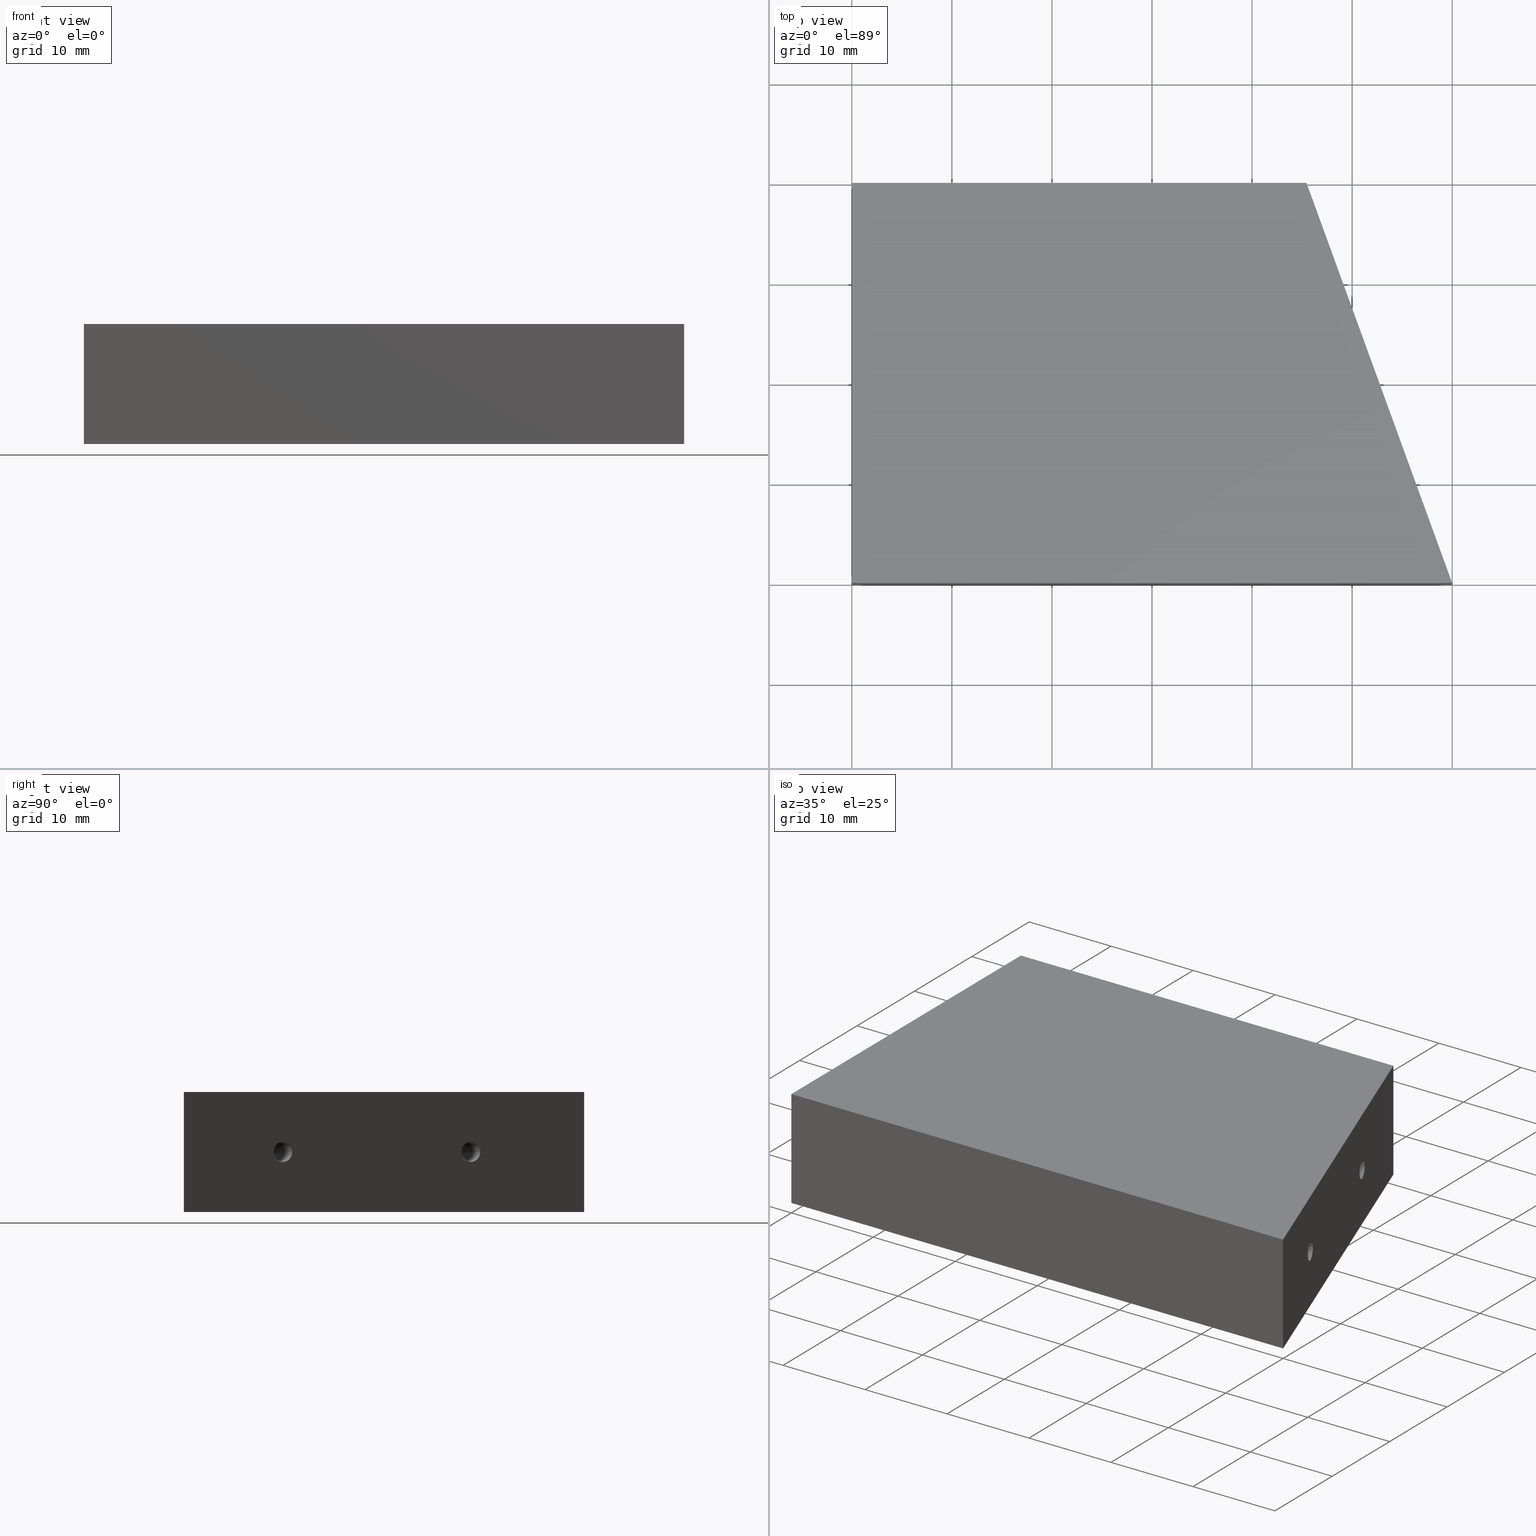
[diagram: canonical four-view strip — front | top / right | iso, engineering-drawing reading convention]
A machine part, canonical four-view strip (front | top / right | iso — engineering-drawing reading convention). The complete STEP part file that produces these views, byte-faithful:
ISO-10303-21;
HEADER;
FILE_DESCRIPTION (( 'STEP AP214' ),
    '1' );
FILE_NAME ('TripodSpreaderSupport.STEP',
    '2015-06-11T08:28:18',
    ( '' ),
    ( '' ),
    'SwSTEP 2.0',
    'SolidWorks 2014',
    '' );
FILE_SCHEMA (( 'AUTOMOTIVE_DESIGN' ));
ENDSEC;

DATA;
#1 = PLANE ( 'NONE',  #360 ) ;
#2 = EDGE_CURVE ( 'NONE', #415, #465, #288, .T. ) ;
#3 = EDGE_CURVE ( 'NONE', #415, #437, #416, .T. ) ;
#4 = EDGE_CURVE ( 'NONE', #325, #82, #382, .T. ) ;
#5 = EDGE_CURVE ( 'NONE', #325, #226, #285, .T. ) ;
#6 = DIRECTION ( 'NONE',  ( 0.9396926207859071000, 0.3420201433256727100, -0.0000000000000000000 ) ) ;
#7 = CARTESIAN_POINT ( 'NONE',  ( 49.56113186031245700, 28.68055449845544700, -2.357763936407512000E-015 ) ) ;
#8 = PRODUCT_RELATED_PRODUCT_CATEGORY ( 'part', '', ( #53 ) ) ;
#9 = EDGE_CURVE ( 'NONE', #82, #366, #278, .T. ) ;
#10 = DIRECTION ( 'NONE',  ( -0.0000000000000000000, -0.0000000000000000000, -1.000000000000000000 ) ) ;
#11 = FILL_AREA_STYLE_COLOUR ( '', #99 ) ;
#12 = EDGE_CURVE ( 'NONE', #82, #226, #276, .T. ) ;
#13 = EDGE_LOOP ( 'NONE', ( #87, #368, #475, #346 ) ) ;
#14 = DIRECTION ( 'NONE',  ( 1.049727191138618600E-016, 0.5150380749100542700, -0.8571673007021122200 ) ) ;
#15 = PRODUCT_DEFINITION_FORMATION_WITH_SPECIFIED_SOURCE ( 'ANY', '', #53, .NOT_KNOWN. ) ;
#16 = CARTESIAN_POINT ( 'NONE',  ( 0.0000000000000000000, 0.0000000000000000000, 0.0000000000000000000 ) ) ;
#17 = ADVANCED_FACE ( 'NONE', ( #273 ), #255, .F. ) ;
#18 = UNCERTAINTY_MEASURE_WITH_UNIT (LENGTH_MEASURE( 1.000000000000000100E-005 ), #378, 'distance_accuracy_value', 'NONE');
#19 = CARTESIAN_POINT ( 'NONE',  ( 45.46724342072068500, 4.842767742043329300, -2.235299256492776500E-015 ) ) ;
#20 = VERTEX_POINT ( 'NONE', #68 ) ;
#21 = CARTESIAN_POINT ( 'NONE',  ( 8.000000000000000000, 32.00000000000000000, -2.999999999999999100 ) ) ;
#22 = DIRECTION ( 'NONE',  ( 0.7771459614569755600, -0.6293203910498317300, 1.049727191138616600E-016 ) ) ;
#23 = EDGE_CURVE ( 'NONE', #366, #98, #265, .T. ) ;
#24 = DIRECTION ( 'NONE',  ( -0.0000000000000000000, 1.000000000000000000, -0.0000000000000000000 ) ) ;
#25 = DIRECTION ( 'NONE',  ( -0.3420201433256704900, 0.9396926207859077600, 0.0000000000000000000 ) ) ;
#26 = EDGE_CURVE ( 'NONE', #226, #98, #262, .T. ) ;
#27 = DIRECTION ( 'NONE',  ( 0.9396926207859071000, 0.3420201433256727100, -0.0000000000000000000 ) ) ;
#28 = PRODUCT_DEFINITION ( 'UNKNOWN', '', #15, #307 ) ;
#29 = AXIS2_PLACEMENT_3D ( 'NONE', #16, #320, #470 ) ;
#30 = ORIENTED_EDGE ( 'NONE', *, *, #12, .F. ) ;
#31 = PRESENTATION_STYLE_ASSIGNMENT (( #318 ) ) ;
#32 = EDGE_CURVE ( 'NONE', #434, #427, #259, .T. ) ;
#33 = SHAPE_DEFINITION_REPRESENTATION ( #362, #428 ) ;
#34 = CARTESIAN_POINT ( 'NONE',  ( 49.90315200363812700, 27.74086187766954800, -2.235299256492777300E-015 ) ) ;
#35 = CARTESIAN_POINT ( 'NONE',  ( 37.94280026755589600, 25.51600539933328100, -2.357763936407512000E-015 ) ) ;
#36 = DIRECTION ( 'NONE',  ( 0.0000000000000000000, 0.0000000000000000000, 1.000000000000000000 ) ) ;
#37 = DIRECTION ( 'NONE',  ( -0.0000000000000000000, 1.000000000000000000, -0.0000000000000000000 ) ) ;
#38 =( GEOMETRIC_REPRESENTATION_CONTEXT ( 3 ) GLOBAL_UNCERTAINTY_ASSIGNED_CONTEXT ( ( #18 ) ) GLOBAL_UNIT_ASSIGNED_CONTEXT ( ( #378, #89, #268 ) ) REPRESENTATION_CONTEXT ( 'NONE', 'WORKASPACE' ) );
#39 = EDGE_LOOP ( 'NONE', ( #355, #423, #478, #309 ) ) ;
#40 = CARTESIAN_POINT ( 'NONE',  ( 8.000000000000000000, 40.00000000000000000, 0.0000000000000000000 ) ) ;
#41 = DIRECTION ( 'NONE',  ( 0.9396926207859068700, 0.3420201433256726500, -0.0000000000000000000 ) ) ;
#42 = CARTESIAN_POINT ( 'NONE',  ( 37.94280026755589600, 25.51600539933327700, -2.357763936407512000E-015 ) ) ;
#43 = CARTESIAN_POINT ( 'NONE',  ( 0.0000000000000000000, 0.0000000000000000000, -6.000000000000000000 ) ) ;
#44 = DIRECTION ( 'NONE',  ( -0.0000000000000000000, 1.000000000000000000, -0.0000000000000000000 ) ) ;
#45 = EDGE_CURVE ( 'NONE', #482, #491, #261, .T. ) ;
#46 = ADVANCED_FACE ( 'NONE', ( #257 ), #1, .F. ) ;
#47 = ORIENTED_EDGE ( 'NONE', *, *, #45, .T. ) ;
#48 = DIRECTION ( 'NONE',  ( 0.0000000000000000000, 0.0000000000000000000, 1.000000000000000000 ) ) ;
#49 = MECHANICAL_DESIGN_GEOMETRIC_PRESENTATION_REPRESENTATION (  '', ( #60 ), #38 ) ;
#50 = EDGE_CURVE ( 'NONE', #434, #336, #245, .T. ) ;
#51 = DIRECTION ( 'NONE',  ( -1.000000000000000000, 0.0000000000000000000, -0.0000000000000000000 ) ) ;
#52 = DIRECTION ( 'NONE',  ( 1.000000000000000000, 0.0000000000000000000, 0.0000000000000000000 ) ) ;
#53 = PRODUCT ( 'TripodSpreaderSupport', 'TripodSpreaderSupport', '', ( #192 ) ) ;
#54 = CARTESIAN_POINT ( 'NONE',  ( 37.72019612106051800, 24.37080634350881800, -5.444084661126318100E-015 ) ) ;
#55 = DIRECTION ( 'NONE',  ( -0.0000000000000000000, -1.000000000000000000, -0.0000000000000000000 ) ) ;
#56 = CARTESIAN_POINT ( 'NONE',  ( 49.21911171698678800, 29.62024711924134800, -2.357763936407512000E-015 ) ) ;
#57 = CARTESIAN_POINT ( 'NONE',  ( 8.000000000000000000, 40.00000000000000000, 2.999999999999994700 ) ) ;
#58 = PRESENTATION_LAYER_ASSIGNMENT (  '', '', ( #60 ) ) ;
#59 = DIRECTION ( 'NONE',  ( -0.3420201433256716000, 0.9396926207859073200, 0.0000000000000000000 ) ) ;
#60 = STYLED_ITEM ( 'NONE', ( #31 ), #428 ) ;
#61 = DIRECTION ( 'NONE',  ( -0.3420201433256702100, 0.9396926207859078700, 0.0000000000000000000 ) ) ;
#62 = ORIENTED_EDGE ( 'NONE', *, *, #181, .F. ) ;
#63 = PLANE ( 'NONE',  #287 ) ;
#64 =( GEOMETRIC_REPRESENTATION_CONTEXT ( 3 ) GLOBAL_UNCERTAINTY_ASSIGNED_CONTEXT ( ( #356 ) ) GLOBAL_UNIT_ASSIGNED_CONTEXT ( ( #513, #497, #237 ) ) REPRESENTATION_CONTEXT ( 'NONE', 'WORKASPACE' ) );
#65 = EDGE_CURVE ( 'NONE', #427, #487, #252, .T. ) ;
#66 = ORIENTED_EDGE ( 'NONE', *, *, #439, .F. ) ;
#67 = FILL_AREA_STYLE_COLOUR ( '', #200 ) ;
#68 = CARTESIAN_POINT ( 'NONE',  ( 0.0000000000000000000, 40.00000000000000000, -6.000000000000000000 ) ) ;
#69 =( NAMED_UNIT ( * ) SI_UNIT ( $, .STERADIAN. ) SOLID_ANGLE_UNIT ( ) );
#70 = EDGE_CURVE ( 'NONE', #20, #241, #243, .T. ) ;
#71 = DIRECTION ( 'NONE',  ( 0.9396926207859068700, 0.3420201433256726500, -0.0000000000000000000 ) ) ;
#72 =( NAMED_UNIT ( * ) PLANE_ANGLE_UNIT ( ) SI_UNIT ( $, .RADIAN. ) );
#73 = EDGE_CURVE ( 'NONE', #336, #427, #240, .T. ) ;
#74 = ADVANCED_FACE ( 'NONE', ( #244 ), #230, .F. ) ;
#75 = DIRECTION ( 'NONE',  ( -0.3420201433256704900, 0.9396926207859077600, 0.0000000000000000000 ) ) ;
#76 = CARTESIAN_POINT ( 'NONE',  ( 45.12522327739501500, 5.782460362829233700, -2.357763936407511600E-015 ) ) ;
#77 = ORIENTED_EDGE ( 'NONE', *, *, #9, .T. ) ;
#78 = CARTESIAN_POINT ( 'NONE',  ( 0.0000000000000000000, 40.00000000000000000, 6.000000000000000000 ) ) ;
#79 = EDGE_CURVE ( 'NONE', #437, #415, #321, .T. ) ;
#80 = ADVANCED_FACE ( 'NONE', ( #222, #234, #223 ), #238, .F. ) ;
#81 = EDGE_CURVE ( 'NONE', #491, #466, #220, .T. ) ;
#82 = VERTEX_POINT ( 'NONE', #86 ) ;
#83 = DIRECTION ( 'NONE',  ( -0.0000000000000000000, -0.0000000000000000000, -1.000000000000000000 ) ) ;
#84 = AXIS2_PLACEMENT_3D ( 'NONE', #76, #27, #25 ) ;
#85 = EDGE_CURVE ( 'NONE', #226, #82, #216, .T. ) ;
#86 = CARTESIAN_POINT ( 'NONE',  ( 38.62684055420724100, 23.63662015776146700, -2.235299256492776500E-015 ) ) ;
#87 = ORIENTED_EDGE ( 'NONE', *, *, #3, .F. ) ;
#88 = DIRECTION ( 'NONE',  ( -0.3420201433256727700, 0.9396926207859069800, 0.0000000000000000000 ) ) ;
#89 =( NAMED_UNIT ( * ) PLANE_ANGLE_UNIT ( ) SI_UNIT ( $, .RADIAN. ) );
#90 = DIRECTION ( 'NONE',  ( 0.0000000000000000000, 0.5150380749100542700, 0.8571673007021122200 ) ) ;
#91 = DIRECTION ( 'NONE',  ( 0.9396926207859071000, 0.3420201433256727100, -0.0000000000000000000 ) ) ;
#92 = ORIENTED_EDGE ( 'NONE', *, *, #361, .F. ) ;
#93 = CARTESIAN_POINT ( 'NONE',  ( 45.44119062935171600, 40.00000000000000000, 6.000000000000000000 ) ) ;
#94 = DIRECTION ( 'NONE',  ( 0.9396926207859071000, 0.3420201433256727100, -0.0000000000000000000 ) ) ;
#95 = AXIS2_PLACEMENT_3D ( 'NONE', #185, #176, #208 ) ;
#96 = EDGE_LOOP ( 'NONE', ( #442, #483, #353 ) ) ;
#97 = AXIS2_PLACEMENT_3D ( 'NONE', #227, #212, #218 ) ;
#98 = VERTEX_POINT ( 'NONE', #384 ) ;
#99 = COLOUR_RGB ( '',1.000000000000000000, 1.000000000000000000, 1.000000000000000000 ) ;
#100 = AXIS2_PLACEMENT_3D ( 'NONE', #40, #37, #36 ) ;
#101 = ORIENTED_EDGE ( 'NONE', *, *, #70, .T. ) ;
#102 = CARTESIAN_POINT ( 'NONE',  ( 49.56113186031245700, 28.68055449845544700, -2.357763936407512000E-015 ) ) ;
#103 = CARTESIAN_POINT ( 'NONE',  ( 45.44119062935171600, 40.00000000000000000, 6.000000000000000000 ) ) ;
#104 = CONICAL_SURFACE ( 'NONE', #84, 0.9999999999999962300, 1.029744258676651200 ) ;
#105 = AXIS2_PLACEMENT_3D ( 'NONE', #102, #91, #88 ) ;
#106 = LINE ( 'NONE', #19, #108 ) ;
#107 = CARTESIAN_POINT ( 'NONE',  ( 45.44119062935171600, 40.00000000000000000, 6.000000000000000000 ) ) ;
#108 = VECTOR ( 'NONE', #22, 1000.000000000000000 ) ;
#109 = CARTESIAN_POINT ( 'NONE',  ( 8.000000000000000000, 32.00000000000000000, 0.0000000000000000000 ) ) ;
#110 = FACE_OUTER_BOUND ( 'NONE', #96, .T. ) ;
#111 = VECTOR ( 'NONE', #44, 1000.000000000000000 ) ;
#112 = ORIENTED_EDGE ( 'NONE', *, *, #334, .T. ) ;
#113 = EDGE_CURVE ( 'NONE', #436, #482, #228, .T. ) ;
#114 = ADVANCED_FACE ( 'NONE', ( #210 ), #207, .F. ) ;
#115 = AXIS2_PLACEMENT_3D ( 'NONE', #458, #305, #51 ) ;
#116 = CIRCLE ( 'NONE', #100, 2.999999999999990700 ) ;
#117 = DIRECTION ( 'NONE',  ( 0.9396926207859071000, 0.3420201433256727100, -0.0000000000000000000 ) ) ;
#118 = CARTESIAN_POINT ( 'NONE',  ( 45.44119062935171600, 40.00000000000000000, -6.000000000000000000 ) ) ;
#119 = VECTOR ( 'NONE', #83, 1000.000000000000000 ) ;
#120 = CARTESIAN_POINT ( 'NONE',  ( 56.74355487015157700, 8.947009461951406500, -2.235299256492776900E-015 ) ) ;
#121 = CARTESIAN_POINT ( 'NONE',  ( 45.44119062935171600, 40.00000000000000000, 6.000000000000000000 ) ) ;
#122 = ORIENTED_EDGE ( 'NONE', *, *, #23, .F. ) ;
#123 = CARTESIAN_POINT ( 'NONE',  ( 0.0000000000000000000, 0.0000000000000000000, 6.000000000000000000 ) ) ;
#124 = CIRCLE ( 'NONE', #105, 0.9999999999999896700 ) ;
#125 = CARTESIAN_POINT ( 'NONE',  ( 0.0000000000000000000, 0.0000000000000000000, -6.000000000000000000 ) ) ;
#126 = CARTESIAN_POINT ( 'NONE',  ( 44.56059898757397500, 5.576953927790676800, -5.444084661126318100E-015 ) ) ;
#127 = AXIS2_PLACEMENT_3D ( 'NONE', #109, #441, #410 ) ;
#128 = CARTESIAN_POINT ( 'NONE',  ( 38.28482041088156500, 24.57631277854737600, -2.357763936407512000E-015 ) ) ;
#129 = DIRECTION ( 'NONE',  ( -0.3420201433256704900, 0.9396926207859077600, 0.0000000000000000000 ) ) ;
#130 = AXIS2_PLACEMENT_3D ( 'NONE', #312, #308, #342 ) ;
#131 = ORIENTED_EDGE ( 'NONE', *, *, #26, .T. ) ;
#132 = LINE ( 'NONE', #57, #111 ) ;
#133 = CARTESIAN_POINT ( 'NONE',  ( 45.12522327739501500, 5.782460362829233700, -2.357763936407511600E-015 ) ) ;
#134 = CYLINDRICAL_SURFACE ( 'NONE', #95, 2.999999999999994700 ) ;
#135 = LINE ( 'NONE', #103, #119 ) ;
#136 = AXIS2_PLACEMENT_3D ( 'NONE', #373, #372, #496 ) ;
#137 = CYLINDRICAL_SURFACE ( 'NONE', #97, 0.9999999999999930100 ) ;
#138 = VECTOR ( 'NONE', #214, 1000.000000000000000 ) ;
#139 = LINE ( 'NONE', #224, #138 ) ;
#140 = FACE_OUTER_BOUND ( 'NONE', #495, .T. ) ;
#141 = EDGE_CURVE ( 'NONE', #453, #487, #394, .T. ) ;
#142 = VECTOR ( 'NONE', #229, 999.9999999999998900 ) ;
#143 = FACE_OUTER_BOUND ( 'NONE', #371, .T. ) ;
#144 = VERTEX_POINT ( 'NONE', #499 ) ;
#145 = CARTESIAN_POINT ( 'NONE',  ( 38.28482041088156500, 24.57631277854737600, -2.357763936407512000E-015 ) ) ;
#146 = VECTOR ( 'NONE', #165, 1000.000000000000000 ) ;
#147 = AXIS2_PLACEMENT_3D ( 'NONE', #351, #339, #233 ) ;
#148 = CONICAL_SURFACE ( 'NONE', #130, 0.9999999999999962300, 1.029744258676651200 ) ;
#149 = UNCERTAINTY_MEASURE_WITH_UNIT (LENGTH_MEASURE( 1.000000000000000100E-005 ), #506, 'distance_accuracy_value', 'NONE');
#150 = LINE ( 'NONE', #161, #146 ) ;
#151 = CIRCLE ( 'NONE', #127, 2.999999999999999100 ) ;
#152 = CARTESIAN_POINT ( 'NONE',  ( 56.74355487015157700, 8.947009461951406500, -2.235299256492776900E-015 ) ) ;
#153 = ORIENTED_EDGE ( 'NONE', *, *, #12, .T. ) ;
#154 = LINE ( 'NONE', #281, #156 ) ;
#155 = CARTESIAN_POINT ( 'NONE',  ( 8.000000000000000000, 40.00000000000000000, 0.0000000000000000000 ) ) ;
#156 = VECTOR ( 'NONE', #296, 1000.000000000000000 ) ;
#157 = CONICAL_SURFACE ( 'NONE', #147, 0.9999999999999962300, 1.029744258676650100 ) ;
#158 = DIRECTION ( 'NONE',  ( -0.0000000000000000000, 1.000000000000000000, -0.0000000000000000000 ) ) ;
#159 = CARTESIAN_POINT ( 'NONE',  ( 8.000000000000000000, 40.00000000000000000, -2.999999999999990700 ) ) ;
#160 = AXIS2_PLACEMENT_3D ( 'NONE', #404, #484, #462 ) ;
#161 = CARTESIAN_POINT ( 'NONE',  ( 0.0000000000000000000, 0.0000000000000000000, 6.000000000000000000 ) ) ;
#162 = CIRCLE ( 'NONE', #136, 0.9999999999999896700 ) ;
#163 = AXIS2_PLACEMENT_3D ( 'NONE', #380, #267, #409 ) ;
#164 = LINE ( 'NONE', #445, #167 ) ;
#165 = DIRECTION ( 'NONE',  ( -0.0000000000000000000, -0.0000000000000000000, -1.000000000000000000 ) ) ;
#166 = FACE_OUTER_BOUND ( 'NONE', #485, .T. ) ;
#167 = VECTOR ( 'NONE', #324, 1000.000000000000000 ) ;
#168 = ADVANCED_FACE ( 'NONE', ( #219 ), #63, .T. ) ;
#169 = FACE_OUTER_BOUND ( 'NONE', #225, .T. ) ;
#170 = CARTESIAN_POINT ( 'NONE',  ( 8.000000000000000000, 40.00000000000000000, 2.999999999999990700 ) ) ;
#171 = APPLICATION_PROTOCOL_DEFINITION ( 'draft international standard', 'automotive_design', 1998, #350 ) ;
#172 = LINE ( 'NONE', #367, #142 ) ;
#173 = CIRCLE ( 'NONE', #196, 0.9999999999999896700 ) ;
#174 = FACE_OUTER_BOUND ( 'NONE', #426, .T. ) ;
#175 = FACE_BOUND ( 'NONE', #417, .T. ) ;
#176 = DIRECTION ( 'NONE',  ( -0.0000000000000000000, 1.000000000000000000, -0.0000000000000000000 ) ) ;
#177 = FACE_OUTER_BOUND ( 'NONE', #507, .T. ) ;
#178 = CYLINDRICAL_SURFACE ( 'NONE', #163, 2.999999999999994700 ) ;
#179 = LINE ( 'NONE', #260, #183 ) ;
#180 = CYLINDRICAL_SURFACE ( 'NONE', #184, 0.9999999999999930100 ) ;
#181 = EDGE_CURVE ( 'NONE', #491, #20, #205, .T. ) ;
#182 = CARTESIAN_POINT ( 'NONE',  ( 8.000000000000000000, 32.00000000000000000, 0.0000000000000000000 ) ) ;
#183 = VECTOR ( 'NONE', #264, 1000.000000000000200 ) ;
#184 = AXIS2_PLACEMENT_3D ( 'NONE', #202, #489, #493 ) ;
#185 = CARTESIAN_POINT ( 'NONE',  ( 8.000000000000000000, 40.00000000000000000, 0.0000000000000000000 ) ) ;
#186 = ORIENTED_EDGE ( 'NONE', *, *, #504, .F. ) ;
#187 = VERTEX_POINT ( 'NONE', #398 ) ;
#188 = LINE ( 'NONE', #369, #189 ) ;
#189 = VECTOR ( 'NONE', #370, 1000.000000000000000 ) ;
#190 = CYLINDRICAL_SURFACE ( 'NONE', #193, 0.9999999999999930100 ) ;
#191 = CARTESIAN_POINT ( 'NONE',  ( 8.000000000000000000, 32.00000000000000000, 0.0000000000000000000 ) ) ;
#192 = PRODUCT_CONTEXT ( 'NONE', #381, 'mechanical' ) ;
#193 = AXIS2_PLACEMENT_3D ( 'NONE', #393, #412, #438 ) ;
#194 = PRESENTATION_STYLE_ASSIGNMENT (( #510 ) ) ;
#195 = SURFACE_STYLE_FILL_AREA ( #433 ) ;
#196 = AXIS2_PLACEMENT_3D ( 'NONE', #333, #331, #251 ) ;
#197 = CONICAL_SURFACE ( 'NONE', #282, 2.999999999999999100, 1.029744258676654300 ) ;
#198 = VECTOR ( 'NONE', #386, 1000.000000000000200 ) ;
#199 = LINE ( 'NONE', #429, #198 ) ;
#200 = COLOUR_RGB ( '',1.000000000000000000, 1.000000000000000000, 1.000000000000000000 ) ;
#201 = FACE_OUTER_BOUND ( 'NONE', #39, .T. ) ;
#202 = CARTESIAN_POINT ( 'NONE',  ( 49.56113186031245700, 28.68055449845544700, -2.357763936407512000E-015 ) ) ;
#203 = FACE_OUTER_BOUND ( 'NONE', #347, .T. ) ;
#204 = FACE_OUTER_BOUND ( 'NONE', #474, .T. ) ;
#205 = LINE ( 'NONE', #397, #213 ) ;
#206 = FACE_OUTER_BOUND ( 'NONE', #354, .T. ) ;
#207 = CYLINDRICAL_SURFACE ( 'NONE', #315, 0.9999999999999930100 ) ;
#208 = DIRECTION ( 'NONE',  ( 0.0000000000000000000, 0.0000000000000000000, 1.000000000000000000 ) ) ;
#209 = FACE_OUTER_BOUND ( 'NONE', #406, .T. ) ;
#210 = FACE_OUTER_BOUND ( 'NONE', #13, .T. ) ;
#211 = CARTESIAN_POINT ( 'NONE',  ( 38.28482041088156500, 24.57631277854737600, -2.357763936407512000E-015 ) ) ;
#212 = DIRECTION ( 'NONE',  ( 0.9396926207859071000, 0.3420201433256727100, -0.0000000000000000000 ) ) ;
#213 = VECTOR ( 'NONE', #10, 1000.000000000000000 ) ;
#214 = DIRECTION ( 'NONE',  ( 1.000000000000000000, -1.161219106975661900E-017, -0.0000000000000000000 ) ) ;
#215 = VECTOR ( 'NONE', #344, 1000.000000000000200 ) ;
#216 = CIRCLE ( 'NONE', #322, 0.9999999999999962300 ) ;
#217 = ADVANCED_FACE ( 'NONE', ( #203 ), #300, .F. ) ;
#218 = DIRECTION ( 'NONE',  ( -0.3420201433256716000, 0.9396926207859073200, 0.0000000000000000000 ) ) ;
#219 = FACE_OUTER_BOUND ( 'NONE', #314, .T. ) ;
#220 = LINE ( 'NONE', #388, #236 ) ;
#221 = CARTESIAN_POINT ( 'NONE',  ( 44.78320313406934600, 6.722152983615133700, -2.357763936407511600E-015 ) ) ;
#222 = FACE_BOUND ( 'NONE', #293, .T. ) ;
#223 = FACE_OUTER_BOUND ( 'NONE', #279, .T. ) ;
#224 = CARTESIAN_POINT ( 'NONE',  ( 60.00000000000000000, -6.967314641853971000E-016, 6.000000000000000000 ) ) ;
#225 = EDGE_LOOP ( 'NONE', ( #451, #476, #153 ) ) ;
#226 = VERTEX_POINT ( 'NONE', #42 ) ;
#227 = CARTESIAN_POINT ( 'NONE',  ( 49.56113186031245700, 28.68055449845544700, -2.357763936407512000E-015 ) ) ;
#228 = LINE ( 'NONE', #121, #215 ) ;
#229 = DIRECTION ( 'NONE',  ( 0.1908089953765439700, 0.9816271834476642000, 0.0000000000000000000 ) ) ;
#230 = CONICAL_SURFACE ( 'NONE', #359, 2.999999999999999100, 1.029744258676654300 ) ;
#231 = ORIENTED_EDGE ( 'NONE', *, *, #361, .T. ) ;
#232 =( GEOMETRIC_REPRESENTATION_CONTEXT ( 3 ) GLOBAL_UNCERTAINTY_ASSIGNED_CONTEXT ( ( #149 ) ) GLOBAL_UNIT_ASSIGNED_CONTEXT ( ( #506, #72, #69 ) ) REPRESENTATION_CONTEXT ( 'NONE', 'WORKASPACE' ) );
#233 = DIRECTION ( 'NONE',  ( -0.3420201433256704900, 0.9396926207859077600, 0.0000000000000000000 ) ) ;
#234 = FACE_BOUND ( 'NONE', #395, .T. ) ;
#235 = DIRECTION ( 'NONE',  ( -0.9396926207859069800, -0.3420201433256727100, 0.0000000000000000000 ) ) ;
#236 = VECTOR ( 'NONE', #511, 1000.000000000000000 ) ;
#237 =( NAMED_UNIT ( * ) SI_UNIT ( $, .STERADIAN. ) SOLID_ANGLE_UNIT ( ) );
#238 = PLANE ( 'NONE',  #319 ) ;
#239 = VECTOR ( 'NONE', #55, 1000.000000000000000 ) ;
#240 = CIRCLE ( 'NONE', #365, 2.999999999999999100 ) ;
#241 = VERTEX_POINT ( 'NONE', #43 ) ;
#242 = VECTOR ( 'NONE', #24, 1000.000000000000000 ) ;
#243 = LINE ( 'NONE', #125, #239 ) ;
#244 = FACE_OUTER_BOUND ( 'NONE', #419, .T. ) ;
#245 = LINE ( 'NONE', #310, #249 ) ;
#246 = MECHANICAL_DESIGN_GEOMETRIC_PRESENTATION_REPRESENTATION (  '', ( #263 ), #232 ) ;
#247 = PRESENTATION_LAYER_ASSIGNMENT (  '', '', ( #263 ) ) ;
#248 = VERTEX_POINT ( 'NONE', #126 ) ;
#249 = VECTOR ( 'NONE', #90, 1000.000000000000000 ) ;
#250 = VECTOR ( 'NONE', #306, 1000.000000000000000 ) ;
#251 = DIRECTION ( 'NONE',  ( -0.3420201433256727700, 0.9396926207859069800, 0.0000000000000000000 ) ) ;
#252 = LINE ( 'NONE', #313, #242 ) ;
#253 = PLANE ( 'NONE',  #160 ) ;
#254 = VECTOR ( 'NONE', #14, 1000.000000000000000 ) ;
#255 = CONICAL_SURFACE ( 'NONE', #390, 0.9999999999999962300, 1.029744258676650100 ) ;
#256 = CARTESIAN_POINT ( 'NONE',  ( 8.000000000000000000, 32.00000000000000000, 2.999999999999999100 ) ) ;
#257 = FACE_OUTER_BOUND ( 'NONE', #514, .T. ) ;
#258 = VECTOR ( 'NONE', #71, 1000.000000000000200 ) ;
#259 = LINE ( 'NONE', #21, #254 ) ;
#260 = CARTESIAN_POINT ( 'NONE',  ( 45.44119062935171600, 40.00000000000000000, -6.000000000000000000 ) ) ;
#261 = LINE ( 'NONE', #411, #250 ) ;
#262 = LINE ( 'NONE', #56, #258 ) ;
#263 = STYLED_ITEM ( 'NONE', ( #194 ), #271 ) ;
#264 = DIRECTION ( 'NONE',  ( -0.3420201433256726000, 0.9396926207859068700, -0.0000000000000000000 ) ) ;
#265 = CIRCLE ( 'NONE', #387, 0.9999999999999896700 ) ;
#266 = VECTOR ( 'NONE', #302, 1000.000000000000200 ) ;
#267 = DIRECTION ( 'NONE',  ( -0.0000000000000000000, 1.000000000000000000, -0.0000000000000000000 ) ) ;
#268 =( NAMED_UNIT ( * ) SI_UNIT ( $, .STERADIAN. ) SOLID_ANGLE_UNIT ( ) );
#269 = ADVANCED_FACE ( 'NONE', ( #206 ), #197, .F. ) ;
#270 = DIRECTION ( 'NONE',  ( -1.000000000000000000, 1.161219106975661700E-017, 0.0000000000000000000 ) ) ;
#271 = MANIFOLD_SOLID_BREP ( '�2.0 (2) Diameter Hole1', #374 ) ;
#272 = ADVANCED_FACE ( 'NONE', ( #201 ), #190, .F. ) ;
#273 = FACE_OUTER_BOUND ( 'NONE', #376, .T. ) ;
#274 = AXIS2_PLACEMENT_3D ( 'NONE', #512, #298, #270 ) ;
#275 = VECTOR ( 'NONE', #311, 1000.000000000000100 ) ;
#276 = CIRCLE ( 'NONE', #392, 0.9999999999999962300 ) ;
#277 = VECTOR ( 'NONE', #341, 1000.000000000000100 ) ;
#278 = LINE ( 'NONE', #34, #266 ) ;
#279 = EDGE_LOOP ( 'NONE', ( #112, #391, #290, #459 ) ) ;
#280 = DIRECTION ( 'NONE',  ( -1.000000000000000000, 0.0000000000000000000, -0.0000000000000000000 ) ) ;
#281 = CARTESIAN_POINT ( 'NONE',  ( 60.00000000000000000, -6.967314641853971000E-016, 6.000000000000000000 ) ) ;
#282 = AXIS2_PLACEMENT_3D ( 'NONE', #481, #449, #447 ) ;
#283 = DIRECTION ( 'NONE',  ( 0.9396926207859071000, 0.3420201433256727100, -0.0000000000000000000 ) ) ;
#284 = ORIENTED_EDGE ( 'NONE', *, *, #181, .T. ) ;
#285 = LINE ( 'NONE', #35, #275 ) ;
#286 = VECTOR ( 'NONE', #41, 1000.000000000000200 ) ;
#287 = AXIS2_PLACEMENT_3D ( 'NONE', #454, #295, #280 ) ;
#288 = LINE ( 'NONE', #120, #286 ) ;
#289 = DIRECTION ( 'NONE',  ( 0.9396926207859071000, 0.3420201433256727100, -0.0000000000000000000 ) ) ;
#290 = ORIENTED_EDGE ( 'NONE', *, *, #113, .F. ) ;
#291 = DIRECTION ( 'NONE',  ( 0.9396926207859071000, 0.3420201433256727100, -0.0000000000000000000 ) ) ;
#292 = DIRECTION ( 'NONE',  ( -0.3420201433256704900, 0.9396926207859077600, 0.0000000000000000000 ) ) ;
#293 = EDGE_LOOP ( 'NONE', ( #480, #122 ) ) ;
#294 = ORIENTED_EDGE ( 'NONE', *, *, #4, .F. ) ;
#295 = DIRECTION ( 'NONE',  ( 0.0000000000000000000, 0.0000000000000000000, -1.000000000000000000 ) ) ;
#296 = DIRECTION ( 'NONE',  ( -0.0000000000000000000, -0.0000000000000000000, -1.000000000000000000 ) ) ;
#297 = EDGE_CURVE ( 'NONE', #437, #144, #199, .T. ) ;
#298 = DIRECTION ( 'NONE',  ( 1.161219106975661700E-017, 1.000000000000000000, -0.0000000000000000000 ) ) ;
#299 = ORIENTED_EDGE ( 'NONE', *, *, #50, .F. ) ;
#300 = PLANE ( 'NONE',  #274 ) ;
#301 = ADVANCED_FACE ( 'NONE', ( #209 ), #180, .F. ) ;
#302 = DIRECTION ( 'NONE',  ( 0.9396926207859068700, 0.3420201433256726500, -0.0000000000000000000 ) ) ;
#303 = PLANE ( 'NONE',  #115 ) ;
#304 = ADVANCED_FACE ( 'NONE', ( #204 ), #178, .F. ) ;
#305 = DIRECTION ( 'NONE',  ( 0.0000000000000000000, 0.0000000000000000000, -1.000000000000000000 ) ) ;
#306 = DIRECTION ( 'NONE',  ( -1.000000000000000000, -0.0000000000000000000, -0.0000000000000000000 ) ) ;
#307 = PRODUCT_DEFINITION_CONTEXT ( 'detailed design', #350, 'design' ) ;
#308 = DIRECTION ( 'NONE',  ( 0.9396926207859071000, 0.3420201433256727100, -0.0000000000000000000 ) ) ;
#309 = ORIENTED_EDGE ( 'NONE', *, *, #363, .T. ) ;
#310 = CARTESIAN_POINT ( 'NONE',  ( 8.000000000000000000, 32.00000000000000000, 2.999999999999999100 ) ) ;
#311 = DIRECTION ( 'NONE',  ( 0.1908089953765450300, 0.9816271834476638600, 0.0000000000000000000 ) ) ;
#312 = CARTESIAN_POINT ( 'NONE',  ( 45.12522327739501500, 5.782460362829233700, -2.357763936407511600E-015 ) ) ;
#313 = CARTESIAN_POINT ( 'NONE',  ( 8.000000000000000000, 40.00000000000000000, -2.999999999999994700 ) ) ;
#314 = EDGE_LOOP ( 'NONE', ( #494, #332, #92, #509 ) ) ;
#315 = AXIS2_PLACEMENT_3D ( 'NONE', #464, #94, #59 ) ;
#316 = AXIS2_PLACEMENT_3D ( 'NONE', #155, #158, #48 ) ;
#317 = DIRECTION ( 'NONE',  ( 0.3420201433256726500, -0.9396926207859068700, 0.0000000000000000000 ) ) ;
#318 = SURFACE_STYLE_USAGE ( .BOTH. , #343 ) ;
#319 = AXIS2_PLACEMENT_3D ( 'NONE', #93, #235, #317 ) ;
#320 = DIRECTION ( 'NONE',  ( 0.0000000000000000000, 0.0000000000000000000, 1.000000000000000000 ) ) ;
#321 = CIRCLE ( 'NONE', #340, 0.9999999999999970000 ) ;
#322 = AXIS2_PLACEMENT_3D ( 'NONE', #128, #289, #129 ) ;
#323 = ORIENTED_EDGE ( 'NONE', *, *, #23, .T. ) ;
#324 = DIRECTION ( 'NONE',  ( 1.000000000000000000, -1.161219106975661900E-017, -0.0000000000000000000 ) ) ;
#325 = VERTEX_POINT ( 'NONE', #54 ) ;
#326 = DIRECTION ( 'NONE',  ( -0.3420201433256702100, 0.9396926207859078700, 0.0000000000000000000 ) ) ;
#327 = ORIENTED_EDGE ( 'NONE', *, *, #492, .T. ) ;
#328 = DIRECTION ( 'NONE',  ( 0.9396926207859071000, 0.3420201433256727100, -0.0000000000000000000 ) ) ;
#329 = ORIENTED_EDGE ( 'NONE', *, *, #408, .T. ) ;
#330 = ORIENTED_EDGE ( 'NONE', *, *, #141, .F. ) ;
#331 = DIRECTION ( 'NONE',  ( 0.9396926207859071000, 0.3420201433256727100, -0.0000000000000000000 ) ) ;
#332 = ORIENTED_EDGE ( 'NONE', *, *, #70, .F. ) ;
#333 = CARTESIAN_POINT ( 'NONE',  ( 56.40153472682590800, 9.886702082737306400, -2.357763936407511600E-015 ) ) ;
#334 = EDGE_CURVE ( 'NONE', #187, #467, #179, .T. ) ;
#335 = CARTESIAN_POINT ( 'NONE',  ( 45.12522327739501500, 5.782460362829233700, -2.357763936407511600E-015 ) ) ;
#336 = VERTEX_POINT ( 'NONE', #256 ) ;
#337 = ADVANCED_FACE ( 'NONE', ( #175, #177 ), #253, .F. ) ;
#338 = CARTESIAN_POINT ( 'NONE',  ( 38.62684055420723400, 23.63662015776147000, -2.235299256492776900E-015 ) ) ;
#339 = DIRECTION ( 'NONE',  ( 0.9396926207859071000, 0.3420201433256727100, -0.0000000000000000000 ) ) ;
#340 = AXIS2_PLACEMENT_3D ( 'NONE', #133, #283, #61 ) ;
#341 = DIRECTION ( 'NONE',  ( 0.7771459614569762300, -0.6293203910498307300, 1.049727191138615900E-016 ) ) ;
#342 = DIRECTION ( 'NONE',  ( -0.3420201433256704900, 0.9396926207859077600, 0.0000000000000000000 ) ) ;
#343 = SURFACE_SIDE_STYLE ('',( #420 ) ) ;
#344 = DIRECTION ( 'NONE',  ( -0.3420201433256726000, 0.9396926207859068700, -0.0000000000000000000 ) ) ;
#345 = ORIENTED_EDGE ( 'NONE', *, *, #73, .F. ) ;
#346 = ORIENTED_EDGE ( 'NONE', *, *, #297, .F. ) ;
#347 = EDGE_LOOP ( 'NONE', ( #452, #473, #66, #422 ) ) ;
#348 = ORIENTED_EDGE ( 'NONE', *, *, #73, .T. ) ;
#349 = CARTESIAN_POINT ( 'NONE',  ( 0.0000000000000000000, 0.0000000000000000000, 6.000000000000000000 ) ) ;
#350 = APPLICATION_CONTEXT ( 'automotive_design' ) ;
#351 = CARTESIAN_POINT ( 'NONE',  ( 38.28482041088156500, 24.57631277854737600, -2.357763936407512000E-015 ) ) ;
#352 = ORIENTED_EDGE ( 'NONE', *, *, #500, .T. ) ;
#353 = ORIENTED_EDGE ( 'NONE', *, *, #3, .T. ) ;
#354 = EDGE_LOOP ( 'NONE', ( #299, #461, #329 ) ) ;
#355 = ORIENTED_EDGE ( 'NONE', *, *, #2, .F. ) ;
#356 = UNCERTAINTY_MEASURE_WITH_UNIT (LENGTH_MEASURE( 1.000000000000000100E-005 ), #513, 'distance_accuracy_value', 'NONE');
#357 = FILL_AREA_STYLE ('',( #11 ) ) ;
#358 = ORIENTED_EDGE ( 'NONE', *, *, #45, .F. ) ;
#359 = AXIS2_PLACEMENT_3D ( 'NONE', #191, #508, #460 ) ;
#360 = AXIS2_PLACEMENT_3D ( 'NONE', #349, #52, #450 ) ;
#361 = EDGE_CURVE ( 'NONE', #467, #20, #188, .T. ) ;
#362 = PRODUCT_DEFINITION_SHAPE ( 'NONE', 'NONE',  #28 ) ;
#363 = EDGE_CURVE ( 'NONE', #144, #465, #173, .T. ) ;
#364 = ORIENTED_EDGE ( 'NONE', *, *, #432, .T. ) ;
#365 = AXIS2_PLACEMENT_3D ( 'NONE', #182, #456, #505 ) ;
#366 = VERTEX_POINT ( 'NONE', #401 ) ;
#367 = CARTESIAN_POINT ( 'NONE',  ( 44.78320313406934600, 6.722152983615137200, -2.357763936407511600E-015 ) ) ;
#368 = ORIENTED_EDGE ( 'NONE', *, *, #2, .T. ) ;
#369 = CARTESIAN_POINT ( 'NONE',  ( 0.0000000000000000000, 40.00000000000000000, -6.000000000000000000 ) ) ;
#370 = DIRECTION ( 'NONE',  ( -1.000000000000000000, -0.0000000000000000000, -0.0000000000000000000 ) ) ;
#371 = EDGE_LOOP ( 'NONE', ( #440, #472, #131, #402 ) ) ;
#372 = DIRECTION ( 'NONE',  ( 0.9396926207859071000, 0.3420201433256727100, -0.0000000000000000000 ) ) ;
#373 = CARTESIAN_POINT ( 'NONE',  ( 56.40153472682590800, 9.886702082737306400, -2.357763936407511600E-015 ) ) ;
#374 = CLOSED_SHELL ( 'NONE', ( #301, #379, #114, #501, #446, #269, #217, #80, #337, #46, #407, #168, #74, #304, #403, #272, #17, #444 ) ) ;
#375 = ORIENTED_EDGE ( 'NONE', *, *, #463, .F. ) ;
#376 = EDGE_LOOP ( 'NONE', ( #294, #490, #498 ) ) ;
#377 = CARTESIAN_POINT ( 'NONE',  ( 7.999999999999998200, 30.19741814291732100, 0.0000000000000000000 ) ) ;
#378 =( LENGTH_UNIT ( ) NAMED_UNIT ( * ) SI_UNIT ( .MILLI., .METRE. ) );
#379 = ADVANCED_FACE ( 'NONE', ( #169 ), #157, .F. ) ;
#380 = CARTESIAN_POINT ( 'NONE',  ( 8.000000000000000000, 40.00000000000000000, 0.0000000000000000000 ) ) ;
#381 = APPLICATION_CONTEXT ( 'automotive_design' ) ;
#382 = LINE ( 'NONE', #338, #277 ) ;
#383 = CARTESIAN_POINT ( 'NONE',  ( 60.00000000000000000, -6.967314641853971000E-016, 6.000000000000000000 ) ) ;
#384 = CARTESIAN_POINT ( 'NONE',  ( 49.21911171698678800, 29.62024711924134800, -2.357763936407512000E-015 ) ) ;
#385 = ORIENTED_EDGE ( 'NONE', *, *, #500, .F. ) ;
#386 = DIRECTION ( 'NONE',  ( 0.9396926207859068700, 0.3420201433256726500, -0.0000000000000000000 ) ) ;
#387 = AXIS2_PLACEMENT_3D ( 'NONE', #7, #6, #414 ) ;
#388 = CARTESIAN_POINT ( 'NONE',  ( 0.0000000000000000000, 0.0000000000000000000, 6.000000000000000000 ) ) ;
#389 = EDGE_CURVE ( 'NONE', #465, #144, #162, .T. ) ;
#390 = AXIS2_PLACEMENT_3D ( 'NONE', #211, #291, #292 ) ;
#391 = ORIENTED_EDGE ( 'NONE', *, *, #486, .F. ) ;
#392 = AXIS2_PLACEMENT_3D ( 'NONE', #145, #117, #75 ) ;
#393 = CARTESIAN_POINT ( 'NONE',  ( 56.40153472682590800, 9.886702082737306400, -2.357763936407511600E-015 ) ) ;
#394 = CIRCLE ( 'NONE', #316, 2.999999999999990700 ) ;
#395 = EDGE_LOOP ( 'NONE', ( #418, #502 ) ) ;
#396 = CARTESIAN_POINT ( 'NONE',  ( 8.000000000000000000, 32.00000000000000000, -2.999999999999999100 ) ) ;
#397 = CARTESIAN_POINT ( 'NONE',  ( 0.0000000000000000000, 40.00000000000000000, 6.000000000000000000 ) ) ;
#398 = CARTESIAN_POINT ( 'NONE',  ( 60.00000000000000000, -6.967314641853971000E-016, -6.000000000000000000 ) ) ;
#399 = AXIS2_PLACEMENT_3D ( 'NONE', #335, #328, #326 ) ;
#400 = EDGE_CURVE ( 'NONE', #241, #187, #164, .T. ) ;
#401 = CARTESIAN_POINT ( 'NONE',  ( 49.90315200363812700, 27.74086187766954800, -2.235299256492777300E-015 ) ) ;
#402 = ORIENTED_EDGE ( 'NONE', *, *, #468, .T. ) ;
#403 = ADVANCED_FACE ( 'NONE', ( #166 ), #148, .F. ) ;
#404 = CARTESIAN_POINT ( 'NONE',  ( 0.0000000000000000000, 40.00000000000000000, 6.000000000000000000 ) ) ;
#405 = APPLICATION_PROTOCOL_DEFINITION ( 'draft international standard', 'automotive_design', 1998, #381 ) ;
#406 = EDGE_LOOP ( 'NONE', ( #30, #77, #323, #425 ) ) ;
#407 = ADVANCED_FACE ( 'NONE', ( #174 ), #303, .F. ) ;
#408 = EDGE_CURVE ( 'NONE', #427, #336, #151, .T. ) ;
#409 = DIRECTION ( 'NONE',  ( 0.0000000000000000000, 0.0000000000000000000, 1.000000000000000000 ) ) ;
#410 = DIRECTION ( 'NONE',  ( 0.0000000000000000000, 0.0000000000000000000, 1.000000000000000000 ) ) ;
#411 = CARTESIAN_POINT ( 'NONE',  ( 0.0000000000000000000, 40.00000000000000000, 6.000000000000000000 ) ) ;
#412 = DIRECTION ( 'NONE',  ( 0.9396926207859071000, 0.3420201433256727100, -0.0000000000000000000 ) ) ;
#413 = EDGE_CURVE ( 'NONE', #436, #187, #154, .T. ) ;
#414 = DIRECTION ( 'NONE',  ( -0.3420201433256727700, 0.9396926207859069800, 0.0000000000000000000 ) ) ;
#415 = VERTEX_POINT ( 'NONE', #443 ) ;
#416 = CIRCLE ( 'NONE', #399, 0.9999999999999970000 ) ;
#417 = EDGE_LOOP ( 'NONE', ( #330, #448 ) ) ;
#418 = ORIENTED_EDGE ( 'NONE', *, *, #363, .F. ) ;
#419 = EDGE_LOOP ( 'NONE', ( #455, #435, #348 ) ) ;
#420 = SURFACE_STYLE_FILL_AREA ( #357 ) ;
#421 = ORIENTED_EDGE ( 'NONE', *, *, #408, .F. ) ;
#422 = ORIENTED_EDGE ( 'NONE', *, *, #463, .T. ) ;
#423 = ORIENTED_EDGE ( 'NONE', *, *, #79, .F. ) ;
#424 = ORIENTED_EDGE ( 'NONE', *, *, #439, .T. ) ;
#425 = ORIENTED_EDGE ( 'NONE', *, *, #26, .F. ) ;
#426 = EDGE_LOOP ( 'NONE', ( #424, #479, #47, #431 ) ) ;
#427 = VERTEX_POINT ( 'NONE', #396 ) ;
#428 = ADVANCED_BREP_SHAPE_REPRESENTATION ( 'TripodSpreaderSupport', ( #271, #29 ), #64 ) ;
#429 = CARTESIAN_POINT ( 'NONE',  ( 56.05951458350023800, 10.82639470352320800, -2.357763936407511600E-015 ) ) ;
#430 = SURFACE_SIDE_STYLE ('',( #195 ) ) ;
#431 = ORIENTED_EDGE ( 'NONE', *, *, #81, .T. ) ;
#432 = EDGE_CURVE ( 'NONE', #248, #437, #172, .T. ) ;
#433 = FILL_AREA_STYLE ('',( #67 ) ) ;
#434 = VERTEX_POINT ( 'NONE', #377 ) ;
#435 = ORIENTED_EDGE ( 'NONE', *, *, #50, .T. ) ;
#436 = VERTEX_POINT ( 'NONE', #383 ) ;
#437 = VERTEX_POINT ( 'NONE', #221 ) ;
#438 = DIRECTION ( 'NONE',  ( -0.3420201433256716000, 0.9396926207859073200, 0.0000000000000000000 ) ) ;
#439 = EDGE_CURVE ( 'NONE', #466, #436, #139, .T. ) ;
#440 = ORIENTED_EDGE ( 'NONE', *, *, #9, .F. ) ;
#441 = DIRECTION ( 'NONE',  ( -0.0000000000000000000, 1.000000000000000000, -0.0000000000000000000 ) ) ;
#442 = ORIENTED_EDGE ( 'NONE', *, *, #432, .F. ) ;
#443 = CARTESIAN_POINT ( 'NONE',  ( 45.46724342072069200, 4.842767742043326600, -2.235299256492776100E-015 ) ) ;
#444 = ADVANCED_FACE ( 'NONE', ( #143 ), #137, .F. ) ;
#445 = CARTESIAN_POINT ( 'NONE',  ( 60.00000000000000000, -6.967314641853971000E-016, -6.000000000000000000 ) ) ;
#446 = ADVANCED_FACE ( 'NONE', ( #140 ), #134, .F. ) ;
#447 = DIRECTION ( 'NONE',  ( 0.0000000000000000000, 0.0000000000000000000, 1.000000000000000000 ) ) ;
#448 = ORIENTED_EDGE ( 'NONE', *, *, #492, .F. ) ;
#449 = DIRECTION ( 'NONE',  ( -0.0000000000000000000, 1.000000000000000000, -0.0000000000000000000 ) ) ;
#450 = DIRECTION ( 'NONE',  ( 0.0000000000000000000, 0.0000000000000000000, -1.000000000000000000 ) ) ;
#451 = ORIENTED_EDGE ( 'NONE', *, *, #5, .F. ) ;
#452 = ORIENTED_EDGE ( 'NONE', *, *, #400, .T. ) ;
#453 = VERTEX_POINT ( 'NONE', #170 ) ;
#454 = CARTESIAN_POINT ( 'NONE',  ( 0.0000000000000000000, 0.0000000000000000000, -6.000000000000000000 ) ) ;
#455 = ORIENTED_EDGE ( 'NONE', *, *, #32, .F. ) ;
#456 = DIRECTION ( 'NONE',  ( -0.0000000000000000000, 1.000000000000000000, -0.0000000000000000000 ) ) ;
#457 = ORIENTED_EDGE ( 'NONE', *, *, #486, .T. ) ;
#458 = CARTESIAN_POINT ( 'NONE',  ( 0.0000000000000000000, 0.0000000000000000000, 6.000000000000000000 ) ) ;
#459 = ORIENTED_EDGE ( 'NONE', *, *, #413, .T. ) ;
#460 = DIRECTION ( 'NONE',  ( 0.0000000000000000000, 0.0000000000000000000, 1.000000000000000000 ) ) ;
#461 = ORIENTED_EDGE ( 'NONE', *, *, #32, .T. ) ;
#462 = DIRECTION ( 'NONE',  ( 0.0000000000000000000, -0.0000000000000000000, -1.000000000000000000 ) ) ;
#463 = EDGE_CURVE ( 'NONE', #466, #241, #150, .T. ) ;
#464 = CARTESIAN_POINT ( 'NONE',  ( 56.40153472682590800, 9.886702082737306400, -2.357763936407511600E-015 ) ) ;
#465 = VERTEX_POINT ( 'NONE', #152 ) ;
#466 = VERTEX_POINT ( 'NONE', #123 ) ;
#467 = VERTEX_POINT ( 'NONE', #118 ) ;
#468 = EDGE_CURVE ( 'NONE', #98, #366, #124, .T. ) ;
#469 = ORIENTED_EDGE ( 'NONE', *, *, #65, .F. ) ;
#470 = DIRECTION ( 'NONE',  ( 1.000000000000000000, 0.0000000000000000000, 0.0000000000000000000 ) ) ;
#471 = ORIENTED_EDGE ( 'NONE', *, *, #81, .F. ) ;
#472 = ORIENTED_EDGE ( 'NONE', *, *, #85, .F. ) ;
#473 = ORIENTED_EDGE ( 'NONE', *, *, #413, .F. ) ;
#474 = EDGE_LOOP ( 'NONE', ( #469, #345, #352, #477 ) ) ;
#475 = ORIENTED_EDGE ( 'NONE', *, *, #389, .T. ) ;
#476 = ORIENTED_EDGE ( 'NONE', *, *, #4, .T. ) ;
#477 = ORIENTED_EDGE ( 'NONE', *, *, #141, .T. ) ;
#478 = ORIENTED_EDGE ( 'NONE', *, *, #297, .T. ) ;
#479 = ORIENTED_EDGE ( 'NONE', *, *, #113, .T. ) ;
#480 = ORIENTED_EDGE ( 'NONE', *, *, #468, .F. ) ;
#481 = CARTESIAN_POINT ( 'NONE',  ( 8.000000000000000000, 32.00000000000000000, 0.0000000000000000000 ) ) ;
#482 = VERTEX_POINT ( 'NONE', #107 ) ;
#483 = ORIENTED_EDGE ( 'NONE', *, *, #504, .T. ) ;
#484 = DIRECTION ( 'NONE',  ( 0.0000000000000000000, -1.000000000000000000, 0.0000000000000000000 ) ) ;
#485 = EDGE_LOOP ( 'NONE', ( #186, #364, #488 ) ) ;
#486 = EDGE_CURVE ( 'NONE', #482, #467, #135, .T. ) ;
#487 = VERTEX_POINT ( 'NONE', #159 ) ;
#488 = ORIENTED_EDGE ( 'NONE', *, *, #79, .T. ) ;
#489 = DIRECTION ( 'NONE',  ( 0.9396926207859071000, 0.3420201433256727100, -0.0000000000000000000 ) ) ;
#490 = ORIENTED_EDGE ( 'NONE', *, *, #5, .T. ) ;
#491 = VERTEX_POINT ( 'NONE', #78 ) ;
#492 = EDGE_CURVE ( 'NONE', #487, #453, #116, .T. ) ;
#493 = DIRECTION ( 'NONE',  ( -0.3420201433256716000, 0.9396926207859073200, 0.0000000000000000000 ) ) ;
#494 = ORIENTED_EDGE ( 'NONE', *, *, #400, .F. ) ;
#495 = EDGE_LOOP ( 'NONE', ( #421, #503, #327, #385 ) ) ;
#496 = DIRECTION ( 'NONE',  ( -0.3420201433256727700, 0.9396926207859069800, 0.0000000000000000000 ) ) ;
#497 =( NAMED_UNIT ( * ) PLANE_ANGLE_UNIT ( ) SI_UNIT ( $, .RADIAN. ) );
#498 = ORIENTED_EDGE ( 'NONE', *, *, #85, .T. ) ;
#499 = CARTESIAN_POINT ( 'NONE',  ( 56.05951458350023800, 10.82639470352320800, -2.357763936407511600E-015 ) ) ;
#500 = EDGE_CURVE ( 'NONE', #336, #453, #132, .T. ) ;
#501 = ADVANCED_FACE ( 'NONE', ( #110 ), #104, .F. ) ;
#502 = ORIENTED_EDGE ( 'NONE', *, *, #389, .F. ) ;
#503 = ORIENTED_EDGE ( 'NONE', *, *, #65, .T. ) ;
#504 = EDGE_CURVE ( 'NONE', #248, #415, #106, .T. ) ;
#505 = DIRECTION ( 'NONE',  ( 0.0000000000000000000, 0.0000000000000000000, 1.000000000000000000 ) ) ;
#506 =( LENGTH_UNIT ( ) NAMED_UNIT ( * ) SI_UNIT ( .MILLI., .METRE. ) );
#507 = EDGE_LOOP ( 'NONE', ( #231, #62, #358, #457 ) ) ;
#508 = DIRECTION ( 'NONE',  ( -0.0000000000000000000, 1.000000000000000000, -0.0000000000000000000 ) ) ;
#509 = ORIENTED_EDGE ( 'NONE', *, *, #334, .F. ) ;
#510 = SURFACE_STYLE_USAGE ( .BOTH. , #430 ) ;
#511 = DIRECTION ( 'NONE',  ( -0.0000000000000000000, -1.000000000000000000, -0.0000000000000000000 ) ) ;
#512 = CARTESIAN_POINT ( 'NONE',  ( 60.00000000000000000, -6.967314641853971000E-016, 6.000000000000000000 ) ) ;
#513 =( LENGTH_UNIT ( ) NAMED_UNIT ( * ) SI_UNIT ( .MILLI., .METRE. ) );
#514 = EDGE_LOOP ( 'NONE', ( #101, #375, #471, #284 ) ) ;
ENDSEC;
END-ISO-10303-21;
